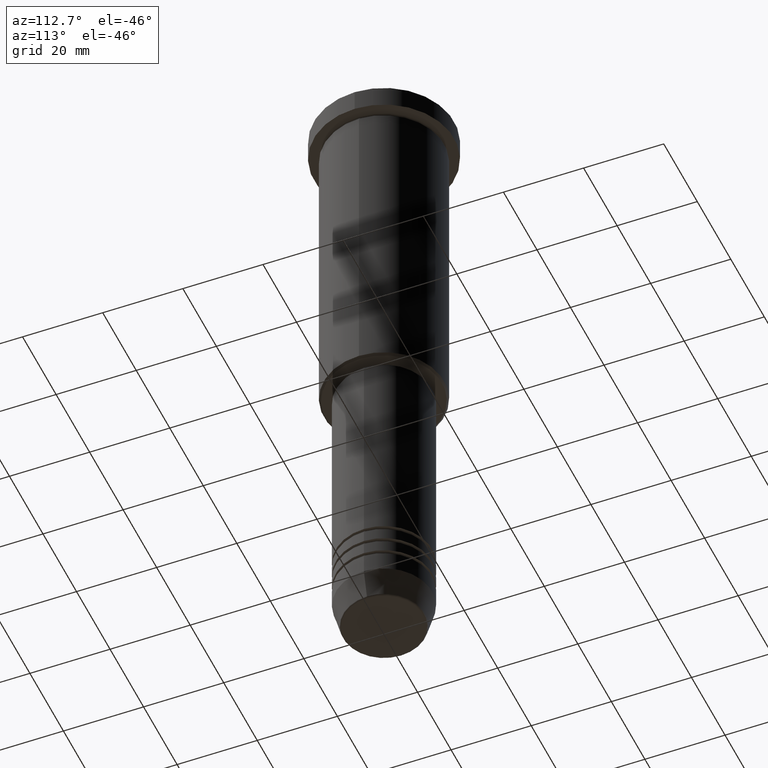
[diagram: clean part render]
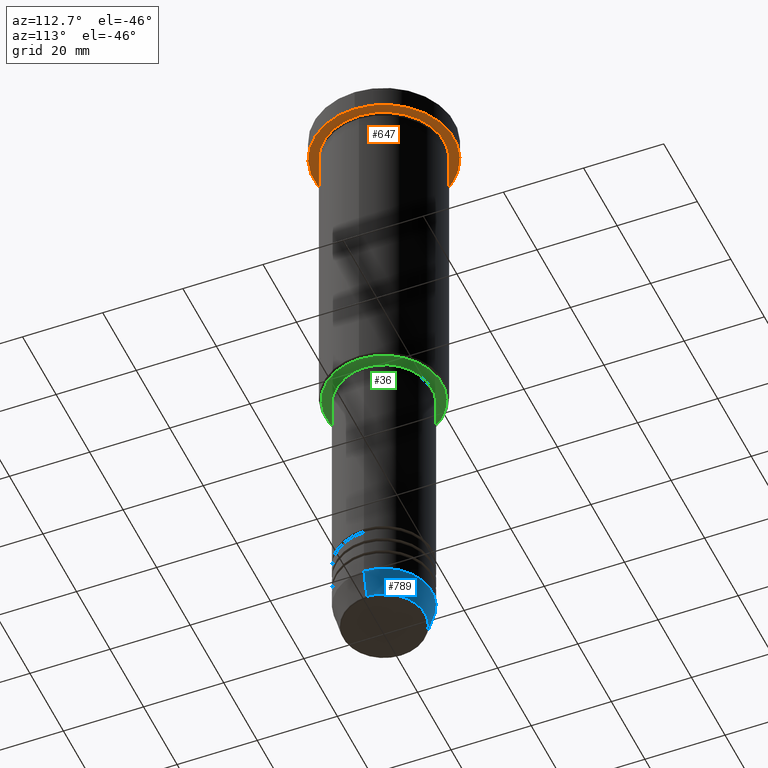
[diagram: same view with three faces highlighted in distinct colors, each labeled with its STEP entity id]
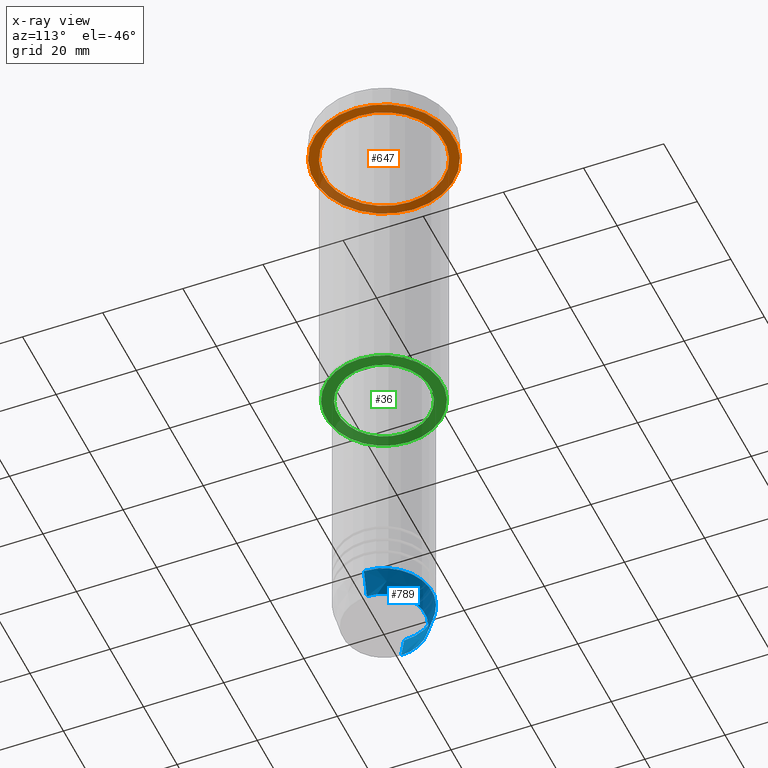
[diagram: x-ray of the same camera — body ghosted, the three highlighted faces saturated]
A machine part, auxiliary view with three faces highlighted in distinct colors.
The next image is the same camera in x-ray (body ghosted, the three faces saturated) — at least one of them is partly hidden behind the body in this view.
Their STEP definitions:

[orange] entity #647 — the highlighted planar face has unit normal (0, 0, -1).
#62 = AXIS2_PLACEMENT_3D ( 'NONE', #1095, #1024, #291 ) ;
#79 = AXIS2_PLACEMENT_3D ( 'NONE', #276, #1091, #283 ) ;
#149 = DIRECTION ( 'NONE',  ( -1.000000000000000000, 0.000000000000000000, 0.000000000000000000 ) ) ;
#163 = EDGE_CURVE ( 'NONE', #1183, #576, #383, .T. ) ;
#200 = ORIENTED_EDGE ( 'NONE', *, *, #529, .F. ) ;
#253 = DIRECTION ( 'NONE',  ( -0.000000000000000000, -0.000000000000000000, 1.000000000000000000 ) ) ;
#256 = DIRECTION ( 'NONE',  ( -1.000000000000000000, 0.000000000000000000, 0.000000000000000000 ) ) ;
#276 = CARTESIAN_POINT ( 'NONE',  ( 0.000000000000000000, 0.000000000000000000, -5.999999999999995559 ) ) ;
#280 = PLANE ( 'NONE',  #62 ) ;
#283 = DIRECTION ( 'NONE',  ( 1.000000000000000000, 0.000000000000000000, 0.000000000000000000 ) ) ;
#291 = DIRECTION ( 'NONE',  ( -1.000000000000000000, 0.000000000000000000, -0.000000000000000000 ) ) ;
#330 = DIRECTION ( 'NONE',  ( 1.000000000000000000, 0.000000000000000000, 0.000000000000000000 ) ) ;
#339 = AXIS2_PLACEMENT_3D ( 'NONE', #769, #697, #149 ) ;
#347 = ORIENTED_EDGE ( 'NONE', *, *, #1036, .T. ) ;
#383 = CIRCLE ( 'NONE', #634, 17.50000000000000000 ) ;
#436 = EDGE_CURVE ( 'NONE', #628, #512, #987, .T. ) ;
#490 = FACE_OUTER_BOUND ( 'NONE', #739, .T. ) ;
#510 = CARTESIAN_POINT ( 'NONE',  ( 0.000000000000000000, 0.000000000000000000, -5.999999999999995559 ) ) ;
#512 = VERTEX_POINT ( 'NONE', #1086 ) ;
#528 = EDGE_LOOP ( 'NONE', ( #347, #701 ) ) ;
#529 = EDGE_CURVE ( 'NONE', #576, #1183, #775, .T. ) ;
#561 = AXIS2_PLACEMENT_3D ( 'NONE', #1164, #253, #256 ) ;
#576 = VERTEX_POINT ( 'NONE', #1060 ) ;
#625 = ORIENTED_EDGE ( 'NONE', *, *, #163, .F. ) ;
#628 = VERTEX_POINT ( 'NONE', #658 ) ;
#634 = AXIS2_PLACEMENT_3D ( 'NONE', #510, #690, #330 ) ;
#647 = ADVANCED_FACE ( 'NONE', ( #936, #490 ), #280, .T. ) ;
#658 = CARTESIAN_POINT ( 'NONE',  ( 15.00000000000000000, 1.836970198721029589E-15, -5.999999999999994671 ) ) ;
#690 = DIRECTION ( 'NONE',  ( -0.000000000000000000, -0.000000000000000000, 1.000000000000000000 ) ) ;
#697 = DIRECTION ( 'NONE',  ( -0.000000000000000000, -0.000000000000000000, 1.000000000000000000 ) ) ;
#701 = ORIENTED_EDGE ( 'NONE', *, *, #436, .T. ) ;
#739 = EDGE_LOOP ( 'NONE', ( #625, #200 ) ) ;
#769 = CARTESIAN_POINT ( 'NONE',  ( 0.000000000000000000, 0.000000000000000000, -5.999999999999995559 ) ) ;
#775 = CIRCLE ( 'NONE', #79, 17.50000000000000000 ) ;
#936 = FACE_BOUND ( 'NONE', #528, .T. ) ;
#987 = CIRCLE ( 'NONE', #339, 15.00000000000000000 ) ;
#1024 = DIRECTION ( 'NONE',  ( 0.000000000000000000, 0.000000000000000000, -1.000000000000000000 ) ) ;
#1036 = EDGE_CURVE ( 'NONE', #512, #628, #1182, .T. ) ;
#1059 = CARTESIAN_POINT ( 'NONE',  ( 17.50000000000000000, 0.000000000000000000, -5.999999999999995559 ) ) ;
#1060 = CARTESIAN_POINT ( 'NONE',  ( -17.50000000000000000, 2.143131898507868248E-15, -5.999999999999995559 ) ) ;
#1086 = CARTESIAN_POINT ( 'NONE',  ( -15.00000000000000000, 0.000000000000000000, -5.999999999999994671 ) ) ;
#1091 = DIRECTION ( 'NONE',  ( -0.000000000000000000, -0.000000000000000000, 1.000000000000000000 ) ) ;
#1095 = CARTESIAN_POINT ( 'NONE',  ( 0.000000000000000000, 17.50000000000000000, -5.999999999999995559 ) ) ;
#1164 = CARTESIAN_POINT ( 'NONE',  ( 0.000000000000000000, 0.000000000000000000, -5.999999999999995559 ) ) ;
#1182 = CIRCLE ( 'NONE', #561, 15.00000000000000000 ) ;
#1183 = VERTEX_POINT ( 'NONE', #1059 ) ;

[blue] entity #789 — the highlighted conical surface has half-angle 15 deg.
#7 = VERTEX_POINT ( 'NONE', #417 ) ;
#55 = CARTESIAN_POINT ( 'NONE',  ( 12.00000000000000000, 0.000000000000000000, -153.9999999999999716 ) ) ;
#57 = CARTESIAN_POINT ( 'NONE',  ( -10.22365507213719127, 1.360806402472382744E-15, -160.6294095225512137 ) ) ;
#126 = VERTEX_POINT ( 'NONE', #57 ) ;
#138 = EDGE_CURVE ( 'NONE', #7, #1058, #416, .T. ) ;
#174 = CARTESIAN_POINT ( 'NONE',  ( -12.00000000000000000, 1.469576158976823947E-15, -153.9999999999999716 ) ) ;
#211 = CIRCLE ( 'NONE', #447, 12.00000000000000000 ) ;
#260 = CIRCLE ( 'NONE', #578, 10.22365507213719127 ) ;
#261 = VECTOR ( 'NONE', #806, 1000.000000000000000 ) ;
#352 = FACE_OUTER_BOUND ( 'NONE', #592, .T. ) ;
#416 = LINE ( 'NONE', #55, #913 ) ;
#417 = CARTESIAN_POINT ( 'NONE',  ( 10.22365507213719127, 0.000000000000000000, -160.6294095225512137 ) ) ;
#419 = DIRECTION ( 'NONE',  ( 0.2588190451025213501, 0.000000000000000000, 0.9659258262890680902 ) ) ;
#423 = ORIENTED_EDGE ( 'NONE', *, *, #1094, .F. ) ;
#435 = CARTESIAN_POINT ( 'NONE',  ( 0.000000000000000000, 0.000000000000000000, -160.6294095225512137 ) ) ;
#447 = AXIS2_PLACEMENT_3D ( 'NONE', #1121, #1109, #931 ) ;
#449 = EDGE_CURVE ( 'NONE', #7, #126, #260, .T. ) ;
#459 = DIRECTION ( 'NONE',  ( -0.000000000000000000, -0.000000000000000000, 1.000000000000000000 ) ) ;
#462 = ORIENTED_EDGE ( 'NONE', *, *, #449, .T. ) ;
#466 = LINE ( 'NONE', #174, #261 ) ;
#531 = DIRECTION ( 'NONE',  ( 1.000000000000000000, 0.000000000000000000, 0.000000000000000000 ) ) ;
#543 = ORIENTED_EDGE ( 'NONE', *, *, #777, .T. ) ;
#565 = CARTESIAN_POINT ( 'NONE',  ( -12.00000000000000000, 1.469576158976823947E-15, -153.9999999999999716 ) ) ;
#578 = AXIS2_PLACEMENT_3D ( 'NONE', #435, #459, #531 ) ;
#592 = EDGE_LOOP ( 'NONE', ( #462, #543, #423, #1141 ) ) ;
#643 = VERTEX_POINT ( 'NONE', #565 ) ;
#760 = CARTESIAN_POINT ( 'NONE',  ( 12.00000000000000000, 0.000000000000000000, -153.9999999999999716 ) ) ;
#777 = EDGE_CURVE ( 'NONE', #126, #643, #466, .T. ) ;
#789 = ADVANCED_FACE ( 'NONE', ( #352 ), #1148, .T. ) ;
#805 = AXIS2_PLACEMENT_3D ( 'NONE', #1074, #1175, #1003 ) ;
#806 = DIRECTION ( 'NONE',  ( -0.2588190451025213501, 3.169619151431772337E-17, 0.9659258262890680902 ) ) ;
#913 = VECTOR ( 'NONE', #419, 1000.000000000000000 ) ;
#931 = DIRECTION ( 'NONE',  ( 1.000000000000000000, 0.000000000000000000, 0.000000000000000000 ) ) ;
#1003 = DIRECTION ( 'NONE',  ( 1.000000000000000000, 0.000000000000000000, 0.000000000000000000 ) ) ;
#1058 = VERTEX_POINT ( 'NONE', #760 ) ;
#1074 = CARTESIAN_POINT ( 'NONE',  ( 0.000000000000000000, 0.000000000000000000, -153.9999999999999716 ) ) ;
#1094 = EDGE_CURVE ( 'NONE', #1058, #643, #211, .T. ) ;
#1109 = DIRECTION ( 'NONE',  ( -0.000000000000000000, -0.000000000000000000, 1.000000000000000000 ) ) ;
#1121 = CARTESIAN_POINT ( 'NONE',  ( 0.000000000000000000, 0.000000000000000000, -153.9999999999999716 ) ) ;
#1141 = ORIENTED_EDGE ( 'NONE', *, *, #138, .F. ) ;
#1148 = CONICAL_SURFACE ( 'NONE', #805, 12.00000000000000000, 0.2617993877991500740 ) ;
#1175 = DIRECTION ( 'NONE',  ( -0.000000000000000000, -0.000000000000000000, 1.000000000000000000 ) ) ;

[green] entity #36 — the highlighted planar face has unit normal (0, 0, -1).
#36 = ADVANCED_FACE ( 'NONE', ( #1127, #309 ), #503, .T. ) ;
#74 = DIRECTION ( 'NONE',  ( -0.000000000000000000, -0.000000000000000000, 1.000000000000000000 ) ) ;
#102 = DIRECTION ( 'NONE',  ( 0.000000000000000000, 0.000000000000000000, -1.000000000000000000 ) ) ;
#108 = ORIENTED_EDGE ( 'NONE', *, *, #489, .T. ) ;
#198 = DIRECTION ( 'NONE',  ( 0.000000000000000000, 0.000000000000000000, -1.000000000000000000 ) ) ;
#255 = ORIENTED_EDGE ( 'NONE', *, *, #1050, .T. ) ;
#275 = CARTESIAN_POINT ( 'NONE',  ( 0.000000000000000000, 0.000000000000000000, -85.99999999999997158 ) ) ;
#293 = CARTESIAN_POINT ( 'NONE',  ( 14.49999999999999645, 0.000000000000000000, -85.99999999999997158 ) ) ;
#309 = FACE_BOUND ( 'NONE', #858, .T. ) ;
#314 = EDGE_CURVE ( 'NONE', #1019, #1098, #485, .T. ) ;
#341 = AXIS2_PLACEMENT_3D ( 'NONE', #665, #916, #577 ) ;
#378 = CARTESIAN_POINT ( 'NONE',  ( 11.50000000000000000, 0.000000000000000000, -85.99999999999997158 ) ) ;
#405 = DIRECTION ( 'NONE',  ( -1.000000000000000000, 0.000000000000000000, -0.000000000000000000 ) ) ;
#468 = CARTESIAN_POINT ( 'NONE',  ( -11.50000000000000000, 1.408343819019456176E-15, -85.99999999999997158 ) ) ;
#485 = CIRCLE ( 'NONE', #1146, 14.49999999999999645 ) ;
#489 = EDGE_CURVE ( 'NONE', #901, #721, #1006, .T. ) ;
#503 = PLANE ( 'NONE',  #880 ) ;
#577 = DIRECTION ( 'NONE',  ( 1.000000000000000000, 0.000000000000000000, 0.000000000000000000 ) ) ;
#665 = CARTESIAN_POINT ( 'NONE',  ( 0.000000000000000000, 0.000000000000000000, -85.99999999999997158 ) ) ;
#667 = EDGE_CURVE ( 'NONE', #721, #901, #1069, .T. ) ;
#678 = DIRECTION ( 'NONE',  ( -1.000000000000000000, 0.000000000000000000, 0.000000000000000000 ) ) ;
#717 = AXIS2_PLACEMENT_3D ( 'NONE', #275, #198, #678 ) ;
#721 = VERTEX_POINT ( 'NONE', #468 ) ;
#729 = DIRECTION ( 'NONE',  ( 1.000000000000000000, 0.000000000000000000, 0.000000000000000000 ) ) ;
#770 = CARTESIAN_POINT ( 'NONE',  ( 0.000000000000000000, 0.000000000000000000, -85.99999999999997158 ) ) ;
#784 = CARTESIAN_POINT ( 'NONE',  ( 0.000000000000000000, 15.00000000000000000, -85.99999999999997158 ) ) ;
#821 = DIRECTION ( 'NONE',  ( -1.000000000000000000, 0.000000000000000000, 0.000000000000000000 ) ) ;
#828 = ORIENTED_EDGE ( 'NONE', *, *, #667, .T. ) ;
#858 = EDGE_LOOP ( 'NONE', ( #108, #828 ) ) ;
#880 = AXIS2_PLACEMENT_3D ( 'NONE', #784, #1139, #405 ) ;
#898 = CARTESIAN_POINT ( 'NONE',  ( 0.000000000000000000, 0.000000000000000000, -85.99999999999997158 ) ) ;
#901 = VERTEX_POINT ( 'NONE', #378 ) ;
#908 = EDGE_LOOP ( 'NONE', ( #255, #952 ) ) ;
#916 = DIRECTION ( 'NONE',  ( -0.000000000000000000, -0.000000000000000000, 1.000000000000000000 ) ) ;
#952 = ORIENTED_EDGE ( 'NONE', *, *, #314, .T. ) ;
#970 = AXIS2_PLACEMENT_3D ( 'NONE', #898, #74, #729 ) ;
#973 = CIRCLE ( 'NONE', #717, 14.49999999999999645 ) ;
#1006 = CIRCLE ( 'NONE', #970, 11.50000000000000000 ) ;
#1019 = VERTEX_POINT ( 'NONE', #1076 ) ;
#1050 = EDGE_CURVE ( 'NONE', #1098, #1019, #973, .T. ) ;
#1069 = CIRCLE ( 'NONE', #341, 11.50000000000000000 ) ;
#1076 = CARTESIAN_POINT ( 'NONE',  ( -14.49999999999999645, 1.806354028742345802E-15, -85.99999999999997158 ) ) ;
#1098 = VERTEX_POINT ( 'NONE', #293 ) ;
#1127 = FACE_OUTER_BOUND ( 'NONE', #908, .T. ) ;
#1139 = DIRECTION ( 'NONE',  ( 0.000000000000000000, 0.000000000000000000, -1.000000000000000000 ) ) ;
#1146 = AXIS2_PLACEMENT_3D ( 'NONE', #770, #102, #821 ) ;